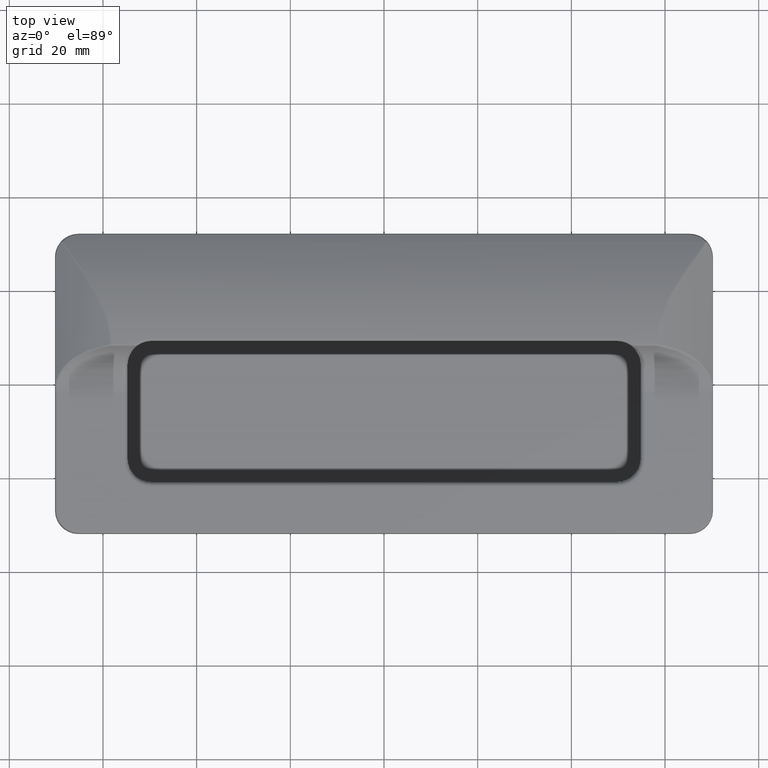
[diagram: clean part render]
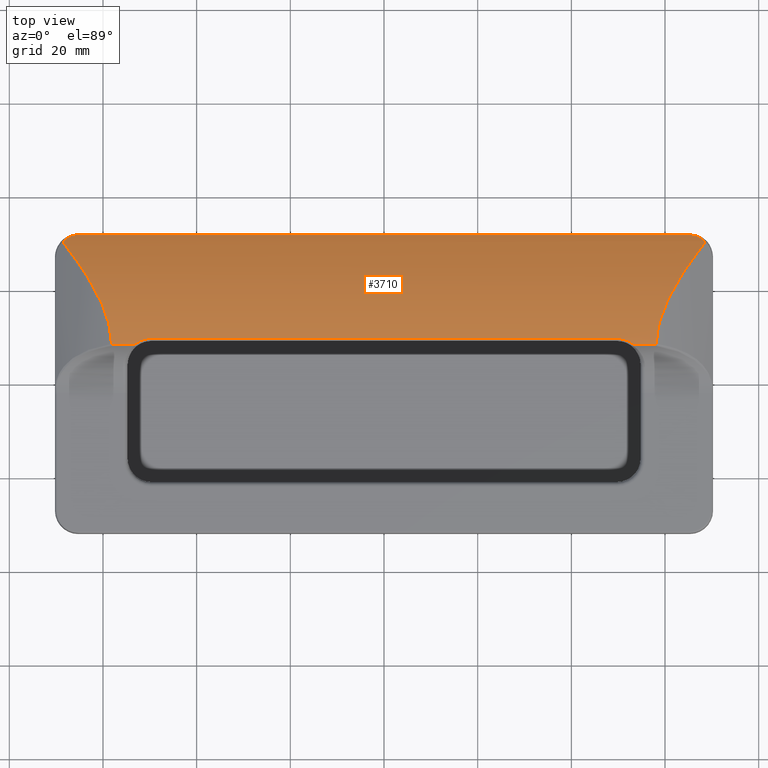
[diagram: same view with one face highlighted and labeled with its STEP entity id]
A machine part, top view. The second image highlights one B-rep face of the part: STEP entity #3710.
In plain terms, the highlighted cylindrical surface (partial cylindrical patch) has radius 44.6429 mm, axis along (-1, 0, 0).
Its self-contained STEP definition (entity closure, byte-faithful):
#71=CYLINDRICAL_SURFACE('',#3984,44.6428571428572);
#225=LINE('',#6931,#511);
#226=LINE('',#6947,#512);
#227=LINE('',#6963,#513);
#228=LINE('',#6975,#514);
#511=VECTOR('',#4552,4.81596141671305);
#512=VECTOR('',#4553,130.5);
#513=VECTOR('',#4554,4.81599412831322);
#514=VECTOR('',#4555,99.5);
#855=FACE_OUTER_BOUND('',#1093,.T.);
#1093=EDGE_LOOP('',(#2739,#2740,#2741,#2742,#2743,#2744,#2745,#2746,#2747,
#2748,#2749,#2750));
#1532=B_SPLINE_CURVE_WITH_KNOTS('',3,(#6933,#6934,#6935,#6936,#6937,#6938,
#6939),.UNSPECIFIED.,.F.,.F.,(4,1,1,1,4),(0.328037649170485,1.41295342244869,
2.13623060463416,2.40745954795371,2.85950778681963),.UNSPECIFIED.);
#1533=B_SPLINE_CURVE_WITH_KNOTS('',3,(#6941,#6942,#6943,#6944,#6945),
 .UNSPECIFIED.,.F.,.F.,(4,1,4),(2.98654409955228,3.15473540877443,3.3789904877373),
 .UNSPECIFIED.);
#1534=B_SPLINE_CURVE_WITH_KNOTS('',3,(#6949,#6950,#6951,#6952,#6953),
 .UNSPECIFIED.,.F.,.F.,(4,1,4),(2.59407096683757,2.76227373800102,2.98654409955228),
 .UNSPECIFIED.);
#1535=B_SPLINE_CURVE_WITH_KNOTS('',3,(#6955,#6956,#6957,#6958,#6959,#6960,
#6961),.UNSPECIFIED.,.F.,.F.,(4,1,1,1,4),(1.14248071784627,1.5945311267969,
1.86576137216729,2.5890420264883,3.67396300796983),.UNSPECIFIED.);
#1536=B_SPLINE_CURVE_WITH_KNOTS('',3,(#6965,#6966,#6967,#6968),
 .UNSPECIFIED.,.F.,.F.,(4,4),(0.,0.0417276441838162),.UNSPECIFIED.);
#1537=B_SPLINE_CURVE_WITH_KNOTS('',3,(#6970,#6971,#6972,#6973),
 .UNSPECIFIED.,.F.,.F.,(4,4),(-0.341536658270297,0.),.UNSPECIFIED.);
#1538=B_SPLINE_CURVE_WITH_KNOTS('',3,(#6977,#6978,#6979,#6980),
 .UNSPECIFIED.,.F.,.F.,(4,4),(-0.341536221298492,0.),.UNSPECIFIED.);
#1539=B_SPLINE_CURVE_WITH_KNOTS('',3,(#6981,#6982,#6983,#6984),
 .UNSPECIFIED.,.F.,.F.,(4,4),(0.,0.0417276854997916),.UNSPECIFIED.);
#1698=VERTEX_POINT('',#6929);
#1699=VERTEX_POINT('',#6930);
#1700=VERTEX_POINT('',#6932);
#1701=VERTEX_POINT('',#6940);
#1702=VERTEX_POINT('',#6946);
#1703=VERTEX_POINT('',#6948);
#1704=VERTEX_POINT('',#6954);
#1705=VERTEX_POINT('',#6962);
#1706=VERTEX_POINT('',#6964);
#1707=VERTEX_POINT('',#6969);
#1708=VERTEX_POINT('',#6974);
#1709=VERTEX_POINT('',#6976);
#2090=EDGE_CURVE('',#1698,#1699,#225,.T.);
#2091=EDGE_CURVE('',#1700,#1698,#1532,.T.);
#2092=EDGE_CURVE('',#1701,#1700,#1533,.T.);
#2093=EDGE_CURVE('',#1702,#1701,#226,.T.);
#2094=EDGE_CURVE('',#1703,#1702,#1534,.T.);
#2095=EDGE_CURVE('',#1704,#1703,#1535,.T.);
#2096=EDGE_CURVE('',#1705,#1704,#227,.T.);
#2097=EDGE_CURVE('',#1706,#1705,#1536,.T.);
#2098=EDGE_CURVE('',#1707,#1706,#1537,.T.);
#2099=EDGE_CURVE('',#1708,#1707,#228,.T.);
#2100=EDGE_CURVE('',#1709,#1708,#1538,.T.);
#2101=EDGE_CURVE('',#1699,#1709,#1539,.T.);
#2739=ORIENTED_EDGE('',*,*,#2090,.F.);
#2740=ORIENTED_EDGE('',*,*,#2091,.F.);
#2741=ORIENTED_EDGE('',*,*,#2092,.F.);
#2742=ORIENTED_EDGE('',*,*,#2093,.F.);
#2743=ORIENTED_EDGE('',*,*,#2094,.F.);
#2744=ORIENTED_EDGE('',*,*,#2095,.F.);
#2745=ORIENTED_EDGE('',*,*,#2096,.F.);
#2746=ORIENTED_EDGE('',*,*,#2097,.F.);
#2747=ORIENTED_EDGE('',*,*,#2098,.F.);
#2748=ORIENTED_EDGE('',*,*,#2099,.F.);
#2749=ORIENTED_EDGE('',*,*,#2100,.F.);
#2750=ORIENTED_EDGE('',*,*,#2101,.F.);
#3710=ADVANCED_FACE('',(#855),#71,.T.);
#3984=AXIS2_PLACEMENT_3D('',#6928,#4550,#4551);
#4550=DIRECTION('center_axis',(-1.,0.,0.));
#4551=DIRECTION('ref_axis',(0.,0.537599999999999,0.8432));
#4552=DIRECTION('',(-1.,0.,0.));
#4553=DIRECTION('',(1.,0.,0.));
#4554=DIRECTION('',(-1.,0.,0.));
#4555=DIRECTION('',(-1.,0.,0.));
#6928=CARTESIAN_POINT('Origin',(70.25,8.00000000000001,-30.6428571428572));
#6929=CARTESIAN_POINT('',(58.1557008161873,8.34743620210443,13.9986480060849));
#6930=CARTESIAN_POINT('',(53.3397393994743,8.34743620210443,13.9986480060849));
#6931=CARTESIAN_POINT('',(70.25,8.34743620210443,13.9986480060849));
#6932=CARTESIAN_POINT('',(68.6076845310684,30.2451352662704,8.06293894587981));
#6933=CARTESIAN_POINT('Ctrl Pts',(68.6076845310684,30.2451352662704,8.06293894587981));
#6934=CARTESIAN_POINT('Ctrl Pts',(66.587602469568,27.6164438006099,9.57371002246087));
#6935=CARTESIAN_POINT('Ctrl Pts',(63.2256091437631,22.9771315358666,11.6620277655754));
#6936=CARTESIAN_POINT('Ctrl Pts',(60.0303269058227,16.9021149187048,13.1941696920928));
#6937=CARTESIAN_POINT('Ctrl Pts',(58.542818305931,12.2966955074205,13.8410258134489));
#6938=CARTESIAN_POINT('Ctrl Pts',(58.1845166755534,9.87164014991929,13.9867854214992));
#6939=CARTESIAN_POINT('Ctrl Pts',(58.1557008161873,8.34743620210439,13.9986480060849));
#6940=CARTESIAN_POINT('',(65.25,31.7661812297735,7.14805874484152));
#6941=CARTESIAN_POINT('Ctrl Pts',(65.25,31.7661812297735,7.14805874484153));
#6942=CARTESIAN_POINT('Ctrl Pts',(65.8106376974072,31.7661812297735,7.14805874484153));
#6943=CARTESIAN_POINT('Ctrl Pts',(67.1161593869225,31.5105816839489,7.31046856161127));
#6944=CARTESIAN_POINT('Ctrl Pts',(68.1502794360004,30.7635676319628,7.7649836196336));
#6945=CARTESIAN_POINT('Ctrl Pts',(68.6076845310684,30.2451352662704,8.06293894587981));
#6946=CARTESIAN_POINT('',(-65.25,31.7661812297735,7.14805874484154));
#6947=CARTESIAN_POINT('',(70.25,31.7661812297735,7.14805874484152));
#6948=CARTESIAN_POINT('',(-68.6078481751748,30.2449497784687,8.06304554950954));
#6949=CARTESIAN_POINT('Ctrl Pts',(-68.6078481751748,30.2449497784687,8.06304554950954));
#6950=CARTESIAN_POINT('Ctrl Pts',(-68.2647939805081,30.6338172320675,7.8395567177275));
#6951=CARTESIAN_POINT('Ctrl Pts',(-67.2945952833845,31.4224688889394,7.36703077930905));
#6952=CARTESIAN_POINT('Ctrl Pts',(-65.9975678718376,31.7661812297735,7.14805874484154));
#6953=CARTESIAN_POINT('Ctrl Pts',(-65.25,31.7661812297735,7.14805874484154));
#6954=CARTESIAN_POINT('',(-58.1557335277875,8.3474362021044,13.9986480060849));
#6955=CARTESIAN_POINT('Ctrl Pts',(-58.1557335277875,8.3474362021044,13.9986480060849));
#6956=CARTESIAN_POINT('Ctrl Pts',(-58.1845597704903,9.87166089596086,13.9867852600368));
#6957=CARTESIAN_POINT('Ctrl Pts',(-58.5429510948689,12.2965009197868,13.8410436007053));
#6958=CARTESIAN_POINT('Ctrl Pts',(-60.0307794175271,16.901809577095,13.1942199077173));
#6959=CARTESIAN_POINT('Ctrl Pts',(-63.2263141340969,22.9766246705422,11.6622251962534));
#6960=CARTESIAN_POINT('Ctrl Pts',(-66.5882809820317,27.6163768370906,9.57373174987371));
#6961=CARTESIAN_POINT('Ctrl Pts',(-68.6078481751748,30.2449497784687,8.06304554950954));
#6962=CARTESIAN_POINT('',(-53.3397393994742,8.34743620210442,13.9986480060849));
#6963=CARTESIAN_POINT('',(70.25,8.34743620210442,13.9986480060849));
#6964=CARTESIAN_POINT('',(-52.9500400622524,8.47858534582055,13.9974346342394));
#6965=CARTESIAN_POINT('Ctrl Pts',(-52.9500400622524,8.47858534582055,13.9974346342394));
#6966=CARTESIAN_POINT('Ctrl Pts',(-53.0631634064122,8.39674293174981,13.998312060853));
#6967=CARTESIAN_POINT('Ctrl Pts',(-53.2006472521948,8.34743620210442,13.9986480060849));
#6968=CARTESIAN_POINT('Ctrl Pts',(-53.3397393994742,8.34743620210442,13.9986480060849));
#6969=CARTESIAN_POINT('',(-49.75,9.51699029126215,13.9742184485996));
#6970=CARTESIAN_POINT('Ctrl Pts',(-49.75,9.51699029126214,13.9742184485996));
#6971=CARTESIAN_POINT('Ctrl Pts',(-50.8884555275677,9.51699029126214,13.9742184485996));
#6972=CARTESIAN_POINT('Ctrl Pts',(-52.0241366307888,9.14845744507837,13.9902529838175));
#6973=CARTESIAN_POINT('Ctrl Pts',(-52.9500400622524,8.47858534582055,13.9974346342395));
#6974=CARTESIAN_POINT('',(49.75,9.51699029126215,13.9742184485996));
#6975=CARTESIAN_POINT('',(70.25,9.51699029126215,13.9742184485996));
#6976=CARTESIAN_POINT('',(52.9500400622524,8.47858534582055,13.9974346342394));
#6977=CARTESIAN_POINT('Ctrl Pts',(52.9500400622524,8.47858534582055,13.9974346342394));
#6978=CARTESIAN_POINT('Ctrl Pts',(52.0241378154163,9.14845658802477,13.9902529930059));
#6979=CARTESIAN_POINT('Ctrl Pts',(50.888454070995,9.51699029126215,13.9742184485996));
#6980=CARTESIAN_POINT('Ctrl Pts',(49.75,9.51699029126215,13.9742184485996));
#6981=CARTESIAN_POINT('Ctrl Pts',(53.3397393994743,8.34743620210442,13.9986480060849));
#6982=CARTESIAN_POINT('Ctrl Pts',(53.2006471144749,8.34743620210442,13.9986480060849));
#6983=CARTESIAN_POINT('Ctrl Pts',(53.0631635184195,8.39674285071483,13.9983120617217));
#6984=CARTESIAN_POINT('Ctrl Pts',(52.9500400622524,8.47858534582055,13.9974346342394));